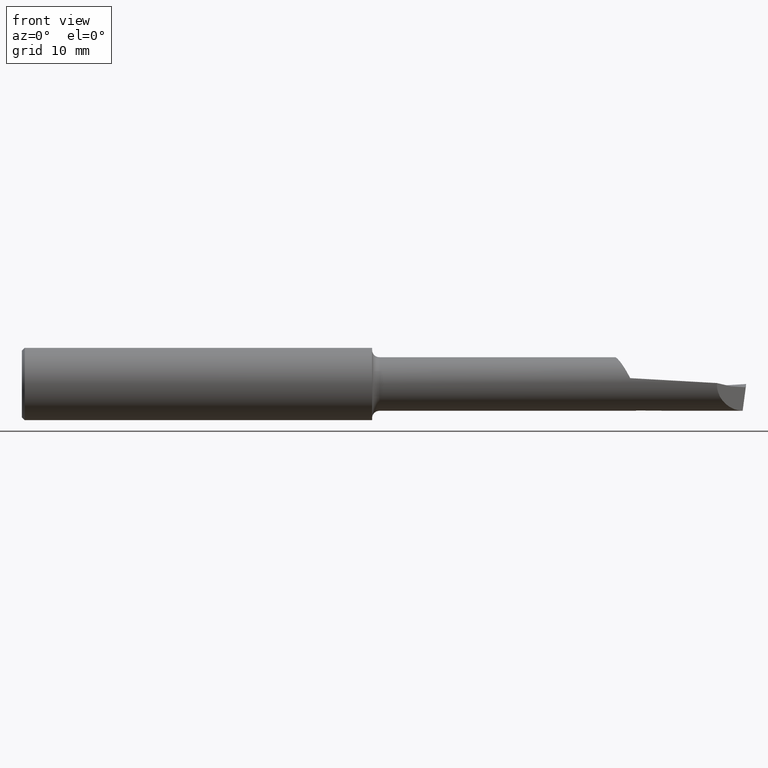
[diagram: clean part render]
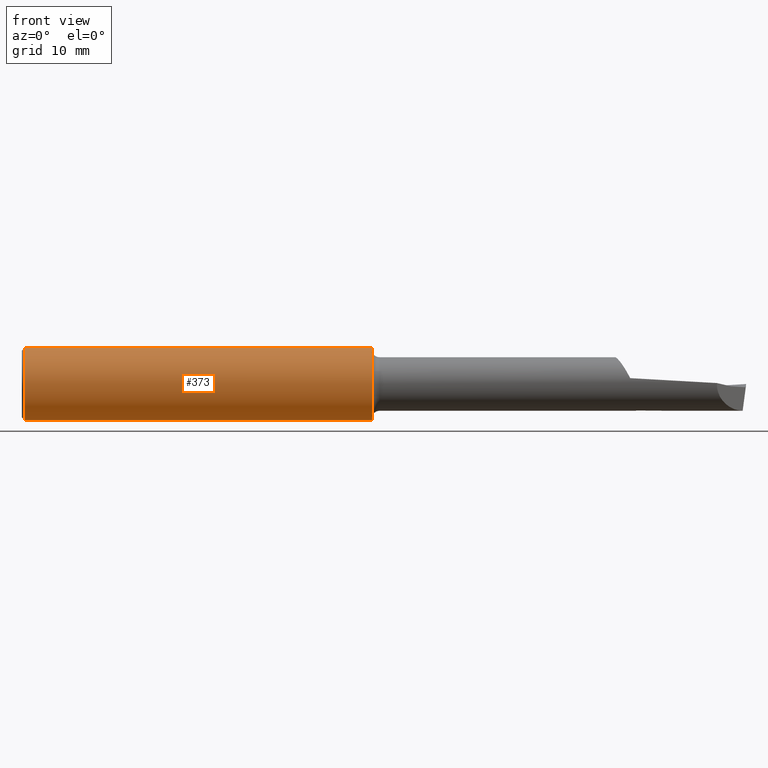
[diagram: same view with one face highlighted and labeled with its STEP entity id]
A machine part, front view. The second image highlights one B-rep face of the part: STEP entity #373.
In plain terms, the highlighted cylindrical surface (edge-blend (fillet) strip) has radius 3.1712 mm, axis along (-1, -0, -0).
Its self-contained STEP definition (entity closure, byte-faithful):
#27 = LINE ( 'NONE', #150, #133 ) ;
#28 = CARTESIAN_POINT ( 'NONE',  ( 1.208895135488212036, 0.000000000000000000, 0.000000000000000000 ) ) ;
#51 = EDGE_CURVE ( 'NONE', #260, #556, #27, .T. ) ;
#67 = AXIS2_PLACEMENT_3D ( 'NONE', #28, #208, #90 ) ;
#86 = AXIS2_PLACEMENT_3D ( 'NONE', #325, #682, #198 ) ;
#90 = DIRECTION ( 'NONE',  ( 0.000000000000000000, 0.000000000000000000, -1.000000000000000000 ) ) ;
#107 = DIRECTION ( 'NONE',  ( -1.000000000000000000, -0.000000000000000000, -0.000000000000000000 ) ) ;
#133 = VECTOR ( 'NONE', #209, 39.37007874015748143 ) ;
#139 = CARTESIAN_POINT ( 'NONE',  ( 0.009999999999999993269, 0.000000000000000000, 0.1248500000000000026 ) ) ;
#150 = CARTESIAN_POINT ( 'NONE',  ( 0.000000000000000000, 1.528971528735470422E-17, -0.1248500000000000026 ) ) ;
#168 = CARTESIAN_POINT ( 'NONE',  ( 0.009999999999999993269, 0.000000000000000000, 0.000000000000000000 ) ) ;
#198 = DIRECTION ( 'NONE',  ( 0.000000000000000000, 0.000000000000000000, 1.000000000000000000 ) ) ;
#199 = ORIENTED_EDGE ( 'NONE', *, *, #200, .F. ) ;
#200 = EDGE_CURVE ( 'NONE', #556, #458, #356, .T. ) ;
#208 = DIRECTION ( 'NONE',  ( 1.000000000000000000, 0.000000000000000000, 0.000000000000000000 ) ) ;
#209 = DIRECTION ( 'NONE',  ( -1.000000000000000000, -0.000000000000000000, -0.000000000000000000 ) ) ;
#220 = VERTEX_POINT ( 'NONE', #708 ) ;
#260 = VERTEX_POINT ( 'NONE', #285 ) ;
#273 = FACE_OUTER_BOUND ( 'NONE', #544, .T. ) ;
#285 = CARTESIAN_POINT ( 'NONE',  ( 1.208895135488212036, 1.528971528735470422E-17, -0.1248500000000000026 ) ) ;
#325 = CARTESIAN_POINT ( 'NONE',  ( 0.000000000000000000, 0.000000000000000000, 0.000000000000000000 ) ) ;
#334 = DIRECTION ( 'NONE',  ( -1.000000000000000000, -0.000000000000000000, -0.000000000000000000 ) ) ;
#337 = EDGE_CURVE ( 'NONE', #220, #458, #744, .T. ) ;
#347 = EDGE_CURVE ( 'NONE', #220, #260, #393, .T. ) ;
#356 = CIRCLE ( 'NONE', #737, 0.1248500000000000026 ) ;
#373 = ADVANCED_FACE ( 'NONE', ( #273 ), #615, .T. ) ;
#393 = CIRCLE ( 'NONE', #67, 0.1248500000000000026 ) ;
#458 = VERTEX_POINT ( 'NONE', #139 ) ;
#464 = ORIENTED_EDGE ( 'NONE', *, *, #51, .F. ) ;
#467 = ORIENTED_EDGE ( 'NONE', *, *, #337, .T. ) ;
#544 = EDGE_LOOP ( 'NONE', ( #464, #578, #467, #199 ) ) ;
#556 = VERTEX_POINT ( 'NONE', #647 ) ;
#578 = ORIENTED_EDGE ( 'NONE', *, *, #347, .F. ) ;
#584 = DIRECTION ( 'NONE',  ( 0.000000000000000000, 0.000000000000000000, 1.000000000000000000 ) ) ;
#615 = CYLINDRICAL_SURFACE ( 'NONE', #86, 0.1248500000000000026 ) ;
#621 = CARTESIAN_POINT ( 'NONE',  ( 0.000000000000000000, 0.000000000000000000, 0.1248500000000000026 ) ) ;
#647 = CARTESIAN_POINT ( 'NONE',  ( 0.009999999999999993269, 1.528971528735470422E-17, -0.1248500000000000026 ) ) ;
#682 = DIRECTION ( 'NONE',  ( -1.000000000000000000, -0.000000000000000000, -0.000000000000000000 ) ) ;
#708 = CARTESIAN_POINT ( 'NONE',  ( 1.208895135488212036, 0.000000000000000000, 0.1248500000000000026 ) ) ;
#737 = AXIS2_PLACEMENT_3D ( 'NONE', #168, #107, #584 ) ;
#740 = VECTOR ( 'NONE', #334, 39.37007874015748143 ) ;
#744 = LINE ( 'NONE', #621, #740 ) ;